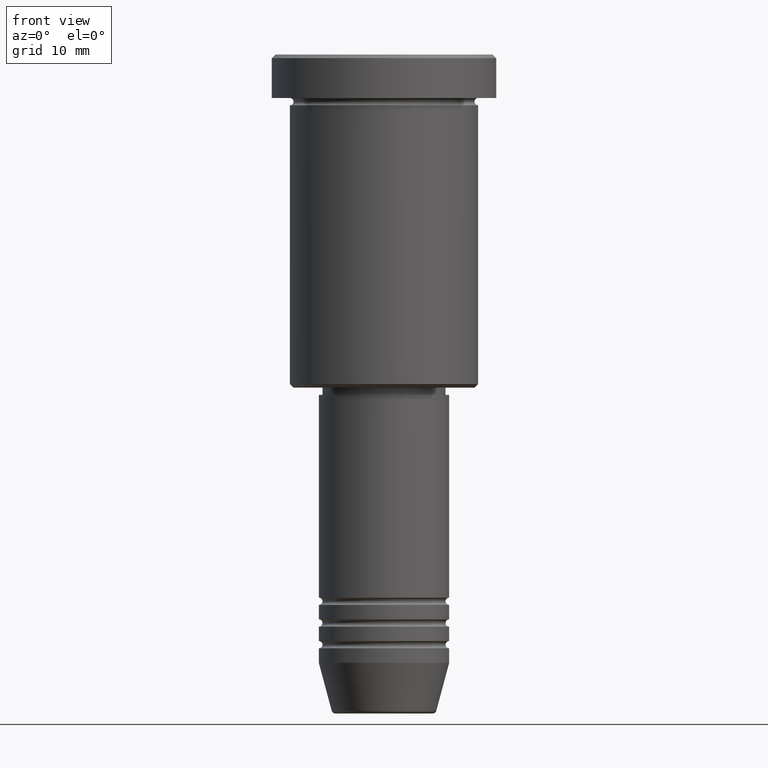
[diagram: clean part render]
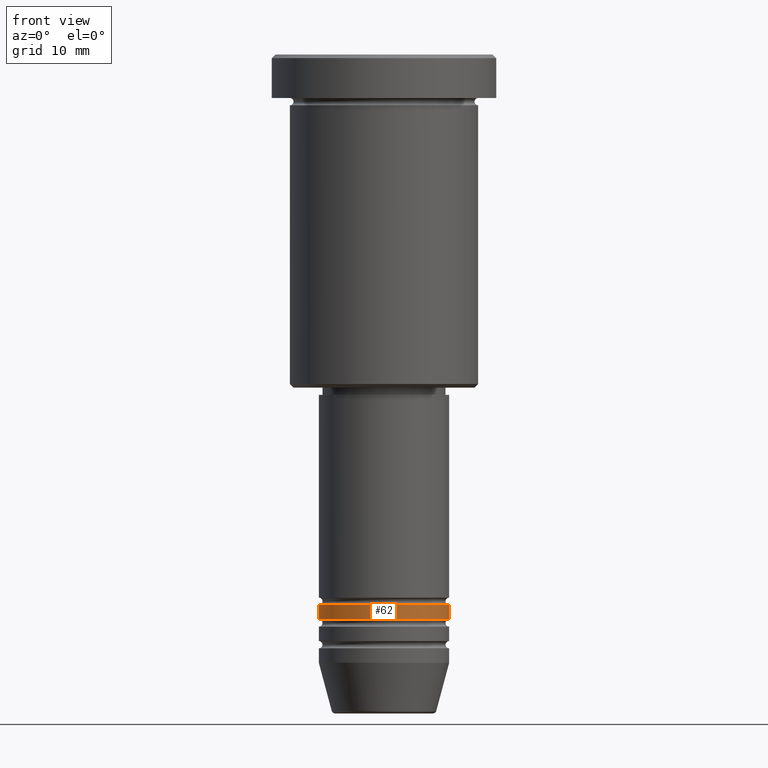
[diagram: same view with one face highlighted and labeled with its STEP entity id]
A machine part, front view. The second image highlights one B-rep face of the part: STEP entity #62.
In plain terms, the highlighted cylindrical surface (partial cylindrical patch) has radius 9 mm, axis along (-0, -0, 1).
Its self-contained STEP definition (entity closure, byte-faithful):
#40 = CARTESIAN_POINT ( 'NONE',  ( 9.000000000000000000, 0.000000000000000000, -75.99999999999997158 ) ) ;
#62 = ADVANCED_FACE ( 'NONE', ( #633 ), #549, .T. ) ;
#84 = CIRCLE ( 'NONE', #750, 9.000000000000000000 ) ;
#85 = EDGE_CURVE ( 'NONE', #735, #932, #463, .T. ) ;
#92 = DIRECTION ( 'NONE',  ( -0.000000000000000000, -0.000000000000000000, 1.000000000000000000 ) ) ;
#101 = AXIS2_PLACEMENT_3D ( 'NONE', #309, #596, #129 ) ;
#129 = DIRECTION ( 'NONE',  ( 1.000000000000000000, 0.000000000000000000, 0.000000000000000000 ) ) ;
#136 = EDGE_CURVE ( 'NONE', #932, #1040, #769, .T. ) ;
#182 = VECTOR ( 'NONE', #194, 1000.000000000000000 ) ;
#194 = DIRECTION ( 'NONE',  ( -0.000000000000000000, -0.000000000000000000, 1.000000000000000000 ) ) ;
#309 = CARTESIAN_POINT ( 'NONE',  ( 0.000000000000000000, 0.000000000000000000, -75.99999999999997158 ) ) ;
#334 = ORIENTED_EDGE ( 'NONE', *, *, #547, .T. ) ;
#382 = DIRECTION ( 'NONE',  ( 1.000000000000000000, 0.000000000000000000, 0.000000000000000000 ) ) ;
#387 = LINE ( 'NONE', #1179, #182 ) ;
#390 = ORIENTED_EDGE ( 'NONE', *, *, #85, .F. ) ;
#421 = ORIENTED_EDGE ( 'NONE', *, *, #476, .T. ) ;
#430 = AXIS2_PLACEMENT_3D ( 'NONE', #914, #92, #460 ) ;
#460 = DIRECTION ( 'NONE',  ( 1.000000000000000000, 0.000000000000000000, 0.000000000000000000 ) ) ;
#463 = LINE ( 'NONE', #648, #577 ) ;
#476 = EDGE_CURVE ( 'NONE', #735, #833, #84, .T. ) ;
#503 = CARTESIAN_POINT ( 'NONE',  ( -9.000000000000000000, 1.102182119232617714E-15, -77.99999999999997158 ) ) ;
#547 = EDGE_CURVE ( 'NONE', #833, #1040, #387, .T. ) ;
#549 = CYLINDRICAL_SURFACE ( 'NONE', #430, 9.000000000000000000 ) ;
#577 = VECTOR ( 'NONE', #581, 1000.000000000000000 ) ;
#581 = DIRECTION ( 'NONE',  ( -0.000000000000000000, -0.000000000000000000, 1.000000000000000000 ) ) ;
#596 = DIRECTION ( 'NONE',  ( -0.000000000000000000, -0.000000000000000000, 1.000000000000000000 ) ) ;
#627 = CARTESIAN_POINT ( 'NONE',  ( -9.000000000000000000, 1.102182119232617714E-15, -75.99999999999997158 ) ) ;
#633 = FACE_OUTER_BOUND ( 'NONE', #893, .T. ) ;
#648 = CARTESIAN_POINT ( 'NONE',  ( -9.000000000000000000, 1.102182119232617714E-15, 0.000000000000000000 ) ) ;
#735 = VERTEX_POINT ( 'NONE', #503 ) ;
#750 = AXIS2_PLACEMENT_3D ( 'NONE', #1183, #832, #382 ) ;
#769 = CIRCLE ( 'NONE', #101, 9.000000000000000000 ) ;
#797 = ORIENTED_EDGE ( 'NONE', *, *, #136, .F. ) ;
#798 = CARTESIAN_POINT ( 'NONE',  ( 9.000000000000000000, 0.000000000000000000, -77.99999999999997158 ) ) ;
#832 = DIRECTION ( 'NONE',  ( -0.000000000000000000, -0.000000000000000000, 1.000000000000000000 ) ) ;
#833 = VERTEX_POINT ( 'NONE', #798 ) ;
#893 = EDGE_LOOP ( 'NONE', ( #390, #421, #334, #797 ) ) ;
#914 = CARTESIAN_POINT ( 'NONE',  ( 0.000000000000000000, 0.000000000000000000, 0.000000000000000000 ) ) ;
#932 = VERTEX_POINT ( 'NONE', #627 ) ;
#1040 = VERTEX_POINT ( 'NONE', #40 ) ;
#1179 = CARTESIAN_POINT ( 'NONE',  ( 9.000000000000000000, 0.000000000000000000, 0.000000000000000000 ) ) ;
#1183 = CARTESIAN_POINT ( 'NONE',  ( 0.000000000000000000, 0.000000000000000000, -77.99999999999997158 ) ) ;